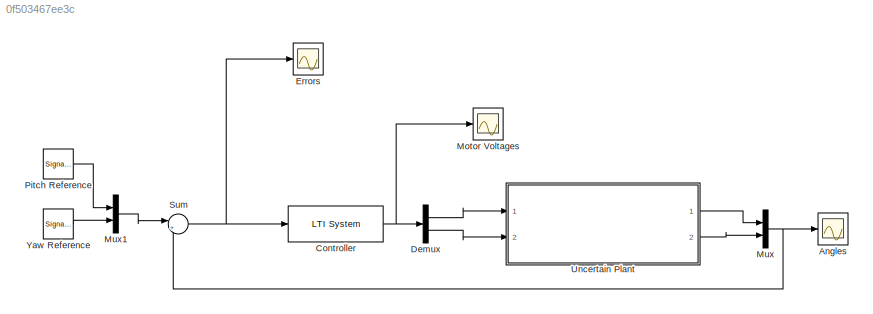
MODEL slx_0f503467ee3c
KIND model
CONFIG AbsTol = auto
CONFIG FixedStep = 0.002
CONFIG MaxStep = auto
CONFIG MinStep = auto
CONFIG RelTol = 1e-3
CONFIG SampleTimeConstraint = Unconstrained
CONFIG Solver = ode1
CONFIG SolverMode = Auto
CONFIG SolverName = ode1
CONFIG StartTime = 0.0
CONFIG StopTime = inf
BLOCK [Scope] Angles
  Ports = [1]
  ScopeSpecificationString = Simulink.scopes.TimeScopeBlockCfg('CurrentConfiguration', extmgr.ConfigurationSet(extmgr.Configuration('Core','General UI',true),extmgr.Configuration('Core','Source UI',true),extmgr.Configuration('Sources','WiredSimulink',true,'DataLoggingVariableName','ScopeData2'),extmgr.Configuration('Visuals','Time Domain',true,'SerializedDisplays',{struct('MinYLimReal','-10.41271','MaxYLimReal','2.33512','YLa...<+1478ch>
BLOCK [Reference] Controller  REF=cstblocks/LTI System
  Ports = [1, 1]
  SourceBlock = cstblocks/LTI System
  SourceType = LTI Block
BLOCK [Demux] Demux
  DisplayOption = bar
  Outputs = 2
  Ports = [1, 2]
BLOCK [Scope] Errors
  Ports = [1]
  ScopeSpecificationString = Simulink.scopes.TimeScopeBlockCfg('CurrentConfiguration', extmgr.ConfigurationSet(extmgr.Configuration('Core','General UI',true),extmgr.Configuration('Core','Source UI',true),extmgr.Configuration('Sources','WiredSimulink',true,'DataLoggingVariableName','ScopeData1'),extmgr.Configuration('Visuals','Time Domain',true,'SerializedDisplays',{struct('MinYLimReal','-3.02235','MaxYLimReal','11.36173','YLa...<+1454ch>
BLOCK [Scope] Motor Voltages
  Ports = [1]
  ScopeSpecificationString = Simulink.scopes.TimeScopeBlockCfg('CurrentConfiguration', extmgr.ConfigurationSet(extmgr.Configuration('Core','General UI',true),extmgr.Configuration('Core','Source UI',true),extmgr.Configuration('Sources','WiredSimulink',true,'DataLoggingVariableName','ScopeData1'),extmgr.Configuration('Visuals','Time Domain',true,'SerializedDisplays',{struct('MinYLimReal','-33.91306','MaxYLimReal','83.05369','YL...<+1470ch>
BLOCK [Mux] Mux
  DisplayOption = bar
  Inputs = 2
  Ports = [2, 1]
BLOCK [Mux] Mux1
  DisplayOption = bar
  Inputs = 2
  Ports = [2, 1]
BLOCK [SignalGenerator] Pitch Reference 
  Amplitude = pi/6
  Frequency = 0.4
  Ports = [0, 1]
  Units = rad/sec
  WaveForm = square
BLOCK [Sum] Sum
  IconShape = round
  InputSameDT = off
  Inputs = |+-
  OutDataTypeStr = Inherit: Inherit via internal rule
  Ports = [2, 1]
  SaturateOnIntegerOverflow = off
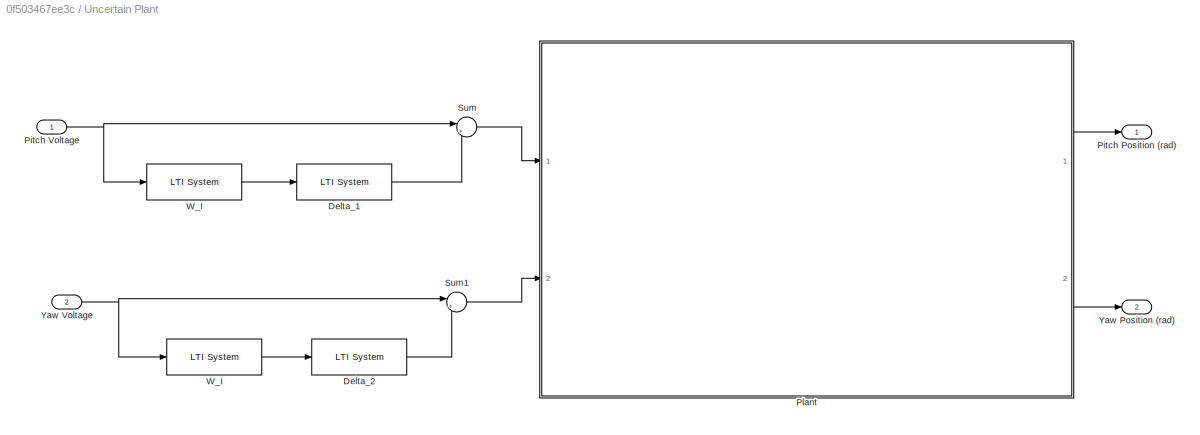
BLOCK [SubSystem] Uncertain Plant
  Ports = [2, 2]
  RequestExecContextInheritance = off
  Variant = off
BLOCK [Reference] Uncertain Plant/Delta_1  REF=cstblocks/LTI System
  Ports = [1, 1]
  SourceBlock = cstblocks/LTI System
  SourceType = LTI Block
BLOCK [Reference] Uncertain Plant/Delta_2  REF=cstblocks/LTI System
  Ports = [1, 1]
  SourceBlock = cstblocks/LTI System
  SourceType = LTI Block
BLOCK [Outport] Uncertain Plant/Pitch Position (rad)
  IconDisplay = Port number
BLOCK [Inport] Uncertain Plant/Pitch Voltage
  IconDisplay = Port number
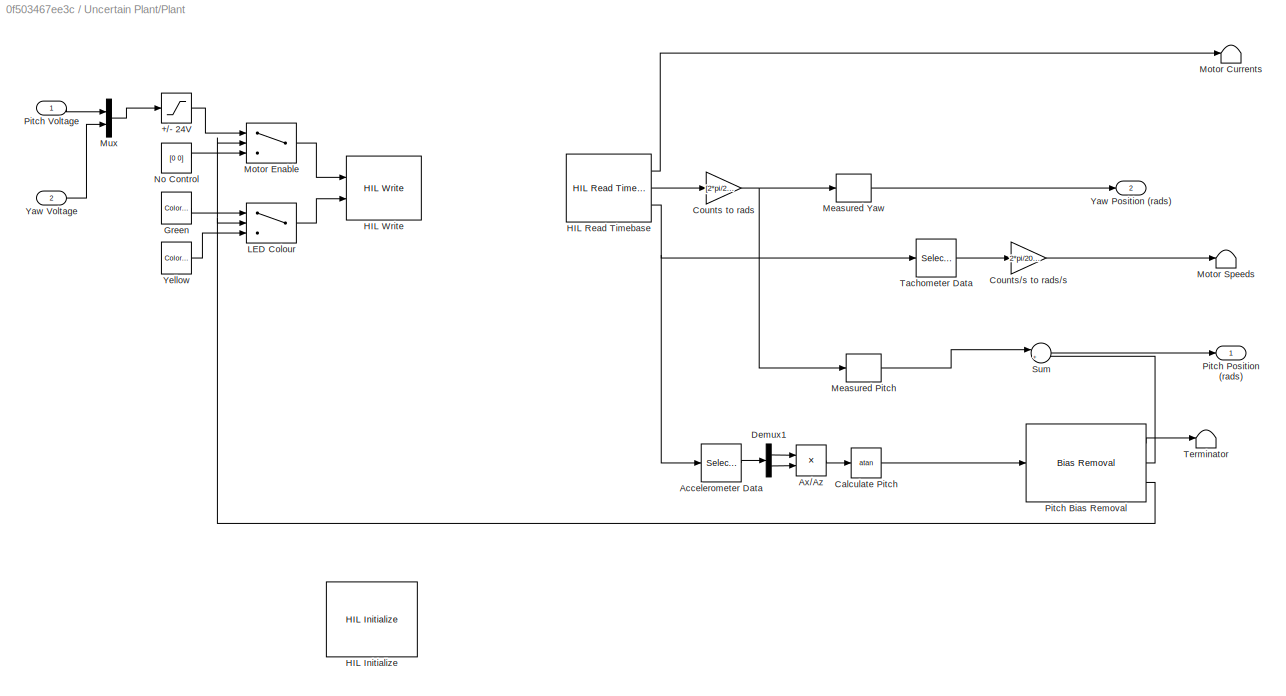
BLOCK [SubSystem] Uncertain Plant/Plant
  Ports = [2, 2]
  RequestExecContextInheritance = off
  Variant = off
BLOCK [Saturate] Uncertain Plant/Plant/+//- 24V
  InputPortMap = u0
  LowerLimit = -24
  Ports = [1, 1]
  UpperLimit = 24
BLOCK [Selector] Uncertain Plant/Plant/Accelerometer Data
  IndexOptions = Index vector (dialog)
  Indices = [1 2]
  InputPortWidth = 4
  OutputSizes = 1
  Ports = [1, 1]
BLOCK [Product] Uncertain Plant/Plant/Ax//Az
  InputSameDT = off
  Inputs = */
  OutDataTypeStr = Inherit: Inherit via internal rule
  Ports = [2, 1]
  RndMeth = Floor
  SaturateOnIntegerOverflow = off
BLOCK [Trigonometry] Uncertain Plant/Plant/Calculate Pitch
  Operator = atan
  Ports = [1, 1]
BLOCK [Gain] Uncertain Plant/Plant/Counts to rads
  Gain = [2*pi/2048 2*pi/4096]
  OutDataTypeStr = Inherit: Inherit via internal rule
  ParamDataTypeStr = Inherit: Inherit via internal rule
  SaturateOnIntegerOverflow = off
BLOCK [Gain] Uncertain Plant/Plant/Counts//s to rads//s
  Gain = 2*pi/2048
  OutDataTypeStr = Inherit: Inherit via internal rule
  ParamDataTypeStr = Inherit: Inherit via internal rule
  SaturateOnIntegerOverflow = off
BLOCK [Demux] Uncertain Plant/Plant/Demux1
  DisplayOption = bar
  Outputs = 2
  Ports = [1, 2]
BLOCK [Reference] Uncertain Plant/Plant/Green  REF=quarc_library/Sources/Signals/Color Constant
  Ports = [0, 1]
  SourceBlock = quarc_library/Sources/Signals/Color Constant
  SourceType = Color Constant
BLOCK [Reference] Uncertain Plant/Plant/HIL Initialize  REF=quarc_library/Data Acquisition/Generic/Configuration/HIL Initialize
  AttributesFormatString = %<object_name> (%<board_type>-%<board_number>)
  Ports = []
  Priority = -99
  SourceBlock = quarc_library/Data Acquisition/Generic/Configuration/HIL Initialize
  SourceType = HIL Initialize
  UserDataPersistent = on
BLOCK [Reference] Uncertain Plant/Plant/HIL Read Timebase  REF=quarc_library/Data Acquisition/Generic/Timebases/HIL Read
Timebase
  AttributesFormatString = (%<object_name>)
  Ports = [0, 3]
  SourceBlock = quarc_library/Data Acquisition/Generic/Timebases/HIL Read\nTimebase
  SourceType = HIL Read Timebase
  UserDataPersistent = on
BLOCK [Reference] Uncertain Plant/Plant/HIL Write  REF=quarc_library/Data Acquisition/Generic/Immediate I//O/HIL Write
  AttributesFormatString = (%<object_name>)
  Ports = [2]
  SourceBlock = quarc_library/Data Acquisition/Generic/Immediate I//O/HIL Write
  SourceType = HIL Write
  UserDataPersistent = on
BLOCK [Switch] Uncertain Plant/Plant/LED Colour
  Criteria = u2 > Threshold
  InputSameDT = off
  SaturateOnIntegerOverflow = off
BLOCK [Selector] Uncertain Plant/Plant/Measured Pitch
  IndexOptions = Index vector (dialog)
  Indices = [1]
  InputPortWidth = 2
  OutputSizes = 1
  Ports = [1, 1]
BLOCK [Selector] Uncertain Plant/Plant/Measured Yaw
  IndexOptions = Index vector (dialog)
  Indices = [2]
  InputPortWidth = 2
  OutputSizes = 1
  Ports = [1, 1]
BLOCK [Terminator] Uncertain Plant/Plant/Motor Currents
BLOCK [Switch] Uncertain Plant/Plant/Motor Enable
  Criteria = u2 > Threshold
  InputSameDT = off
  SaturateOnIntegerOverflow = off
BLOCK [Terminator] Uncertain Plant/Plant/Motor Speeds
BLOCK [Mux] Uncertain Plant/Plant/Mux
  DisplayOption = bar
  Inputs = 2
  Ports = [2, 1]
BLOCK [Constant] Uncertain Plant/Plant/No Control
  Value = [0 0]
BLOCK [Reference] Uncertain Plant/Plant/Pitch Bias Removal  REF=quarc_library/Discrete/Bias Removal
  Ports = [1, 3]
  SourceBlock = quarc_library/Discrete/Bias Removal
  SourceType = Bias Removal
BLOCK [Outport] Uncertain Plant/Plant/Pitch Position (rads)
  IconDisplay = Port number
BLOCK [Inport] Uncertain Plant/Plant/Pitch Voltage
  IconDisplay = Port number
BLOCK [Sum] Uncertain Plant/Plant/Sum
  IconShape = round
  InputSameDT = off
  Inputs = |+-
  OutDataTypeStr = Inherit: Inherit via internal rule
  Ports = [2, 1]
  SaturateOnIntegerOverflow = off
BLOCK [Selector] Uncertain Plant/Plant/Tachometer Data
  IndexOptions = Index vector (dialog)
  Indices = [3 4]
  InputPortWidth = 4
  OutputSizes = 1
  Ports = [1, 1]
BLOCK [Terminator] Uncertain Plant/Plant/Terminator
BLOCK [Outport] Uncertain Plant/Plant/Yaw Position (rads)
  IconDisplay = Port number
  Port = 2
BLOCK [Inport] Uncertain Plant/Plant/Yaw Voltage
  IconDisplay = Port number
  Port = 2
BLOCK [Reference] Uncertain Plant/Plant/Yellow  REF=quarc_library/Sources/Signals/Color Constant
  Ports = [0, 1]
  SourceBlock = quarc_library/Sources/Signals/Color Constant
  SourceType = Color Constant
BLOCK [Sum] Uncertain Plant/Sum
  IconShape = round
  InputSameDT = off
  Inputs = |++
  OutDataTypeStr = Inherit: Inherit via internal rule
  Ports = [2, 1]
  SaturateOnIntegerOverflow = off
BLOCK [Sum] Uncertain Plant/Sum1
  IconShape = round
  InputSameDT = off
  Inputs = |++
  OutDataTypeStr = Inherit: Inherit via internal rule
  Ports = [2, 1]
  SaturateOnIntegerOverflow = off
BLOCK [Reference] Uncertain Plant/W_I  REF=cstblocks/LTI System
  Ports = [1, 1]
  SourceBlock = cstblocks/LTI System
  SourceType = LTI Block
BLOCK [Reference] Uncertain Plant/W_I   REF=cstblocks/LTI System
  Ports = [1, 1]
  SourceBlock = cstblocks/LTI System
  SourceType = LTI Block
BLOCK [Outport] Uncertain Plant/Yaw Position (rad)
  IconDisplay = Port number
  Port = 2
BLOCK [Inport] Uncertain Plant/Yaw Voltage
  IconDisplay = Port number
  Port = 2
BLOCK [SignalGenerator] Yaw Reference
  Amplitude = pi/4
  Frequency = 0.5
  Ports = [0, 1]
  Units = rad/sec
  WaveForm = square
NET Controller:1 -> Demux:1, Motor Voltages:1
LINE Demux:1 -> Uncertain Plant:1
LINE Demux:2 -> Uncertain Plant:2
LINE Mux1:1 -> Sum:1
NET Mux:1 -> Angles:1, Sum:2
LINE Pitch Reference :1 -> Mux1:1
NET Sum:1 -> Controller:1, Errors:1
LINE Uncertain Plant/Delta_1:1 -> Uncertain Plant/Sum:2
LINE Uncertain Plant/Delta_2:1 -> Uncertain Plant/Sum1:2
NET Uncertain Plant/Pitch Voltage:1 -> Uncertain Plant/Sum:1, Uncertain Plant/W_I:1
LINE Uncertain Plant/Plant/+//- 24V:1 -> Uncertain Plant/Plant/Motor Enable:1
LINE Uncertain Plant/Plant/Accelerometer Data:1 -> Uncertain Plant/Plant/Demux1:1
LINE Uncertain Plant/Plant/Ax//Az:1 -> Uncertain Plant/Plant/Calculate Pitch:1
LINE Uncertain Plant/Plant/Calculate Pitch:1 -> Uncertain Plant/Plant/Pitch Bias Removal:1
NET Uncertain Plant/Plant/Counts to rads:1 -> Uncertain Plant/Plant/Measured Pitch:1, Uncertain Plant/Plant/Measured Yaw:1
LINE Uncertain Plant/Plant/Counts//s to rads//s:1 -> Uncertain Plant/Plant/Motor Speeds:1
LINE Uncertain Plant/Plant/Demux1:1 -> Uncertain Plant/Plant/Ax//Az:1
LINE Uncertain Plant/Plant/Demux1:2 -> Uncertain Plant/Plant/Ax//Az:2
LINE Uncertain Plant/Plant/Green:1 -> Uncertain Plant/Plant/LED Colour:1
LINE Uncertain Plant/Plant/HIL Read Timebase:1 -> Uncertain Plant/Plant/Motor Currents:1
LINE Uncertain Plant/Plant/HIL Read Timebase:2 -> Uncertain Plant/Plant/Counts to rads:1
NET Uncertain Plant/Plant/HIL Read Timebase:3 -> Uncertain Plant/Plant/Accelerometer Data:1, Uncertain Plant/Plant/Tachometer Data:1
LINE Uncertain Plant/Plant/LED Colour:1 -> Uncertain Plant/Plant/HIL Write:2
LINE Uncertain Plant/Plant/Measured Pitch:1 -> Uncertain Plant/Plant/Sum:1
LINE Uncertain Plant/Plant/Measured Yaw:1 -> Uncertain Plant/Plant/Yaw Position (rads):1
LINE Uncertain Plant/Plant/Motor Enable:1 -> Uncertain Plant/Plant/HIL Write:1
LINE Uncertain Plant/Plant/Mux:1 -> Uncertain Plant/Plant/+//- 24V:1
LINE Uncertain Plant/Plant/No Control:1 -> Uncertain Plant/Plant/Motor Enable:3
LINE Uncertain Plant/Plant/Pitch Bias Removal:1 -> Uncertain Plant/Plant/Terminator:1
LINE Uncertain Plant/Plant/Pitch Bias Removal:2 -> Uncertain Plant/Plant/Sum:2
NET Uncertain Plant/Plant/Pitch Bias Removal:3 -> Uncertain Plant/Plant/LED Colour:2, Uncertain Plant/Plant/Motor Enable:2
LINE Uncertain Plant/Plant/Pitch Voltage:1 -> Uncertain Plant/Plant/Mux:1
LINE Uncertain Plant/Plant/Sum:1 -> Uncertain Plant/Plant/Pitch Position (rads):1
LINE Uncertain Plant/Plant/Tachometer Data:1 -> Uncertain Plant/Plant/Counts//s to rads//s:1
LINE Uncertain Plant/Plant/Yaw Voltage:1 -> Uncertain Plant/Plant/Mux:2
LINE Uncertain Plant/Plant/Yellow:1 -> Uncertain Plant/Plant/LED Colour:3
LINE Uncertain Plant/Plant:1 -> Uncertain Plant/Pitch Position (rad):1
LINE Uncertain Plant/Plant:2 -> Uncertain Plant/Yaw Position (rad):1
LINE Uncertain Plant/Sum1:1 -> Uncertain Plant/Plant:2
LINE Uncertain Plant/Sum:1 -> Uncertain Plant/Plant:1
LINE Uncertain Plant/W_I :1 -> Uncertain Plant/Delta_2:1
LINE Uncertain Plant/W_I:1 -> Uncertain Plant/Delta_1:1
NET Uncertain Plant/Yaw Voltage:1 -> Uncertain Plant/Sum1:1, Uncertain Plant/W_I :1
LINE Uncertain Plant:1 -> Mux:1
LINE Uncertain Plant:2 -> Mux:2
LINE Yaw Reference:1 -> Mux1:2
note: NET lines group one-source signal fan-out (src -> all destinations, sorted); 1:1 wires keep LINE
